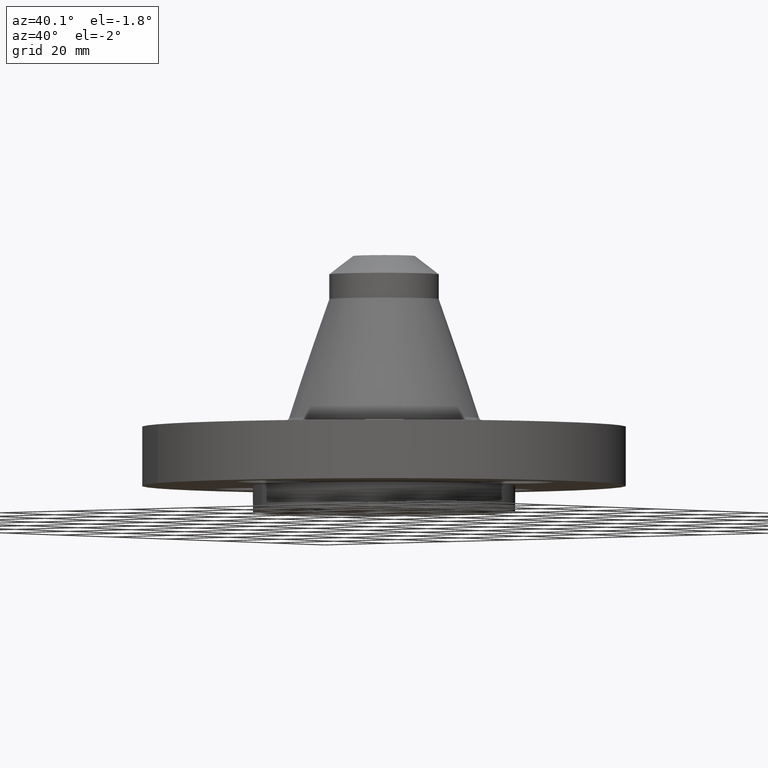
[diagram: clean part render]
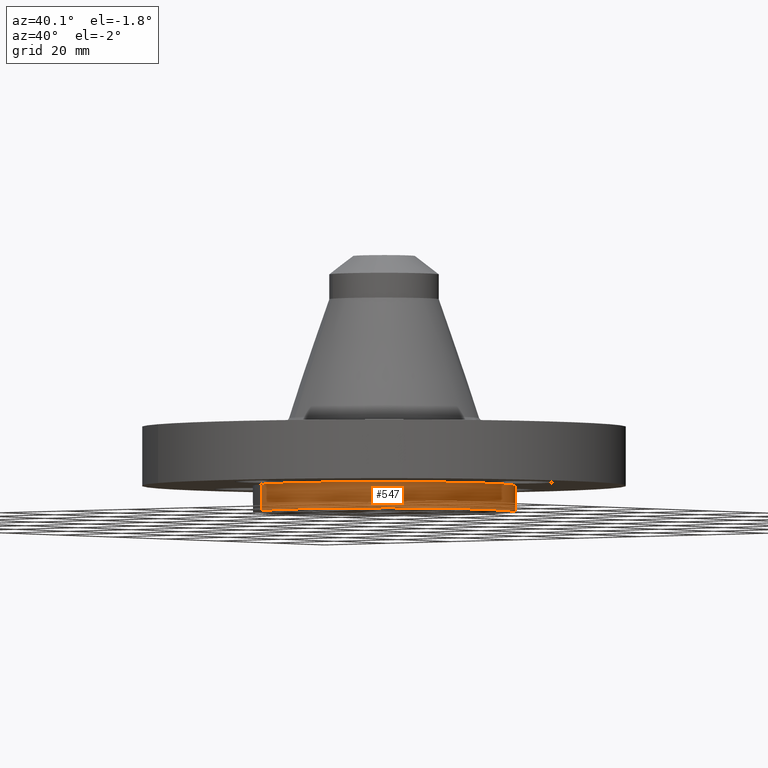
[diagram: same view with one face highlighted and labeled with its STEP entity id]
A machine part, auxiliary view. The second image highlights one B-rep face of the part: STEP entity #547.
In plain terms, the highlighted cylindrical surface (partial cylindrical patch) has radius 31.75 mm, axis along (0, 0, -1).
Its self-contained STEP definition (entity closure, byte-faithful):
#190=AXIS2_PLACEMENT_3D('Circle Axis2P3D',#188,#189,$) ;
#216=AXIS2_PLACEMENT_3D('Circle Axis2P3D',#214,#215,$) ;
#261=AXIS2_PLACEMENT_3D('Circle Axis2P3D',#259,#260,$) ;
#518=AXIS2_PLACEMENT_3D('Cylinder Axis2P3D',#515,#516,#517) ;
#522=AXIS2_PLACEMENT_3D('Circle Axis2P3D',#520,#521,$) ;
#173=CARTESIAN_POINT('Vertex',(2.79741234551E-016,-1.25000000001,-6.56021169146E-012)) ;
#188=CARTESIAN_POINT('Axis2P3D Location',(5.50948962742E-011,-4.50949863627E-011,0.)) ;
#192=CARTESIAN_POINT('Vertex',(1.25000000001,-2.09805925913E-016,-6.56021169146E-012)) ;
#214=CARTESIAN_POINT('Axis2P3D Location',(-1.28371853829E-011,7.51440904251E-012,0.)) ;
#218=CARTESIAN_POINT('Vertex',(0.599281923259,1.09697820237,-6.56021169146E-012)) ;
#256=CARTESIAN_POINT('Vertex',(-0.59928192326,-1.09697820237,-6.56021169146E-012)) ;
#259=CARTESIAN_POINT('Axis2P3D Location',(-2.37968699864E-011,-4.64248761918E-011,0.)) ;
#515=CARTESIAN_POINT('Axis2P3D Location',(0.,0.,0.970000000004)) ;
#520=CARTESIAN_POINT('Axis2P3D Location',(0.,0.,-0.249999999992)) ;
#524=CARTESIAN_POINT('Vertex',(0.59928192326,1.09697820237,-0.249999999992)) ;
#526=CARTESIAN_POINT('Vertex',(-0.599281923244,-1.09697820239,-0.250000000001)) ;
#529=CARTESIAN_POINT('Line Origine',(0.59928192326,1.09697820237,-0.124999999999)) ;
#534=CARTESIAN_POINT('Line Origine',(-0.59928192326,-1.09697820237,-0.124999999999)) ;
#189=DIRECTION('Axis2P3D Direction',(0.,0.,-0.0393700787402)) ;
#215=DIRECTION('Axis2P3D Direction',(0.,0.,-0.0393700787402)) ;
#260=DIRECTION('Axis2P3D Direction',(0.,0.,-0.0393700787402)) ;
#516=DIRECTION('Axis2P3D Direction',(0.,0.,-0.0393700787402)) ;
#517=DIRECTION('Axis2P3D XDirection',(0.0188750212049,0.0345504945626,0.)) ;
#521=DIRECTION('Axis2P3D Direction',(0.,0.,-0.0393700787402)) ;
#530=DIRECTION('Vector Direction',(0.,0.,-0.0393700787402)) ;
#535=DIRECTION('Vector Direction',(0.,0.,-0.0393700787402)) ;
#531=VECTOR('Line Direction',#530,0.0393700787402) ;
#536=VECTOR('Line Direction',#535,0.0393700787402) ;
#540=ORIENTED_EDGE('',*,*,#528,.F.) ;
#541=ORIENTED_EDGE('',*,*,#533,.T.) ;
#542=ORIENTED_EDGE('',*,*,#220,.T.) ;
#543=ORIENTED_EDGE('',*,*,#194,.T.) ;
#544=ORIENTED_EDGE('',*,*,#263,.T.) ;
#545=ORIENTED_EDGE('',*,*,#538,.F.) ;
#547=ADVANCED_FACE('PartBody',(#546),#519,.T.) ;
#191=CIRCLE('generated circle',#190,1.24999999994) ;
#217=CIRCLE('generated circle',#216,1.25000000001) ;
#262=CIRCLE('generated circle',#261,1.24999999994) ;
#523=CIRCLE('generated circle',#522,1.25000000001) ;
#519=CYLINDRICAL_SURFACE('generated cylinder',#518,1.25000000001) ;
#194=EDGE_CURVE('',#193,#174,#191,.T.) ;
#220=EDGE_CURVE('',#219,#193,#217,.T.) ;
#263=EDGE_CURVE('',#174,#257,#262,.T.) ;
#528=EDGE_CURVE('',#525,#527,#523,.T.) ;
#533=EDGE_CURVE('',#525,#219,#532,.F.) ;
#538=EDGE_CURVE('',#527,#257,#537,.F.) ;
#539=EDGE_LOOP('',(#540,#541,#542,#543,#544,#545)) ;
#546=FACE_OUTER_BOUND('',#539,.T.) ;
#532=LINE('Line',#529,#531) ;
#537=LINE('Line',#534,#536) ;
#174=VERTEX_POINT('',#173) ;
#193=VERTEX_POINT('',#192) ;
#219=VERTEX_POINT('',#218) ;
#257=VERTEX_POINT('',#256) ;
#525=VERTEX_POINT('',#524) ;
#527=VERTEX_POINT('',#526) ;